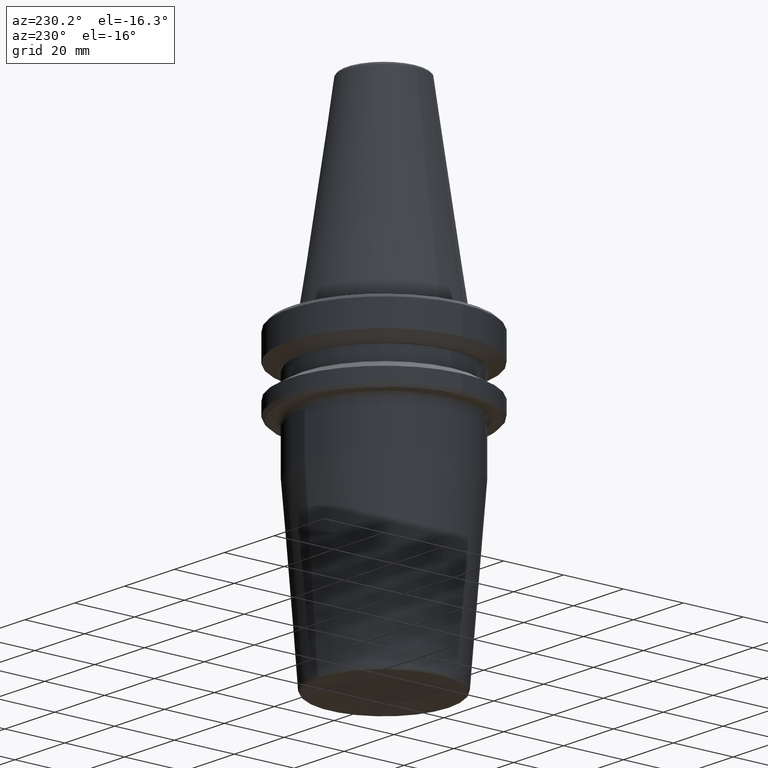
[diagram: clean part render]
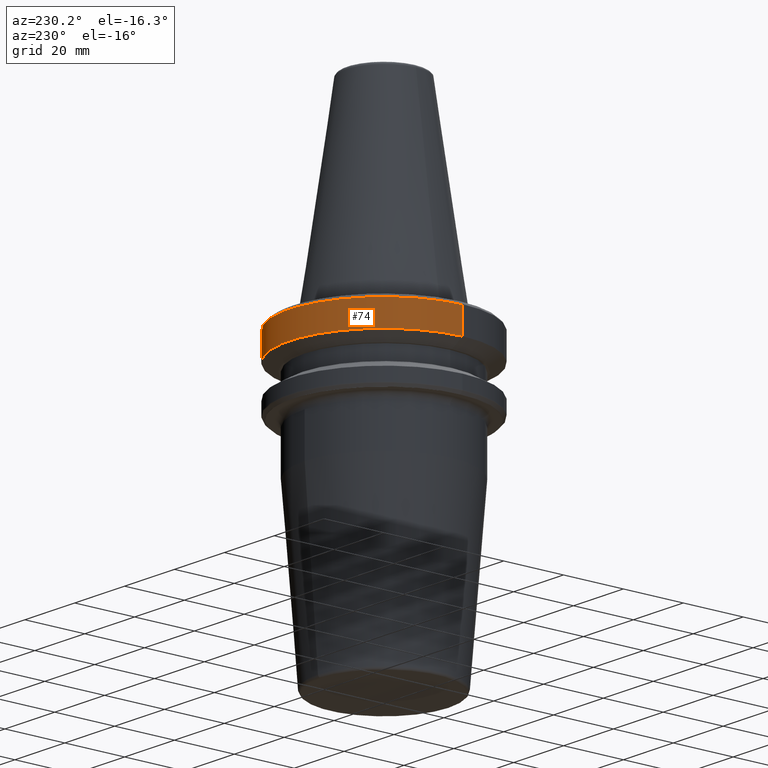
[diagram: same view with one face highlighted and labeled with its STEP entity id]
A machine part, auxiliary view. The second image highlights one B-rep face of the part: STEP entity #74.
In plain terms, the highlighted cylindrical surface (partial cylindrical patch) has radius 31.5 mm, axis along (-0, -0, 1).
Its self-contained STEP definition (entity closure, byte-faithful):
#7 = DIRECTION ( 'NONE',  ( -0.0000000000000000000, -0.0000000000000000000, 1.000000000000000000 ) ) ;
#20 = CARTESIAN_POINT ( 'NONE',  ( 0.0000000000000000000, 0.0000000000000000000, 69.75694866325665100 ) ) ;
#61 = ORIENTED_EDGE ( 'NONE', *, *, #96, .T. ) ;
#63 = DIRECTION ( 'NONE',  ( -0.0000000000000000000, -0.0000000000000000000, 1.000000000000000000 ) ) ;
#72 = CIRCLE ( 'NONE', #402, 31.49999999999999300 ) ;
#74 = ADVANCED_FACE ( 'NONE', ( #443 ), #417, .T. ) ;
#83 = LINE ( 'NONE', #519, #302 ) ;
#96 = EDGE_CURVE ( 'NONE', #374, #651, #914, .T. ) ;
#159 = DIRECTION ( 'NONE',  ( 1.000000000000000000, 0.0000000000000000000, 0.0000000000000000000 ) ) ;
#211 = ORIENTED_EDGE ( 'NONE', *, *, #925, .F. ) ;
#220 = VECTOR ( 'NONE', #63, 1000.000000000000000 ) ;
#240 = DIRECTION ( 'NONE',  ( -0.0000000000000000000, -0.0000000000000000000, 1.000000000000000000 ) ) ;
#302 = VECTOR ( 'NONE', #240, 1000.000000000000000 ) ;
#374 = VERTEX_POINT ( 'NONE', #931 ) ;
#402 = AXIS2_PLACEMENT_3D ( 'NONE', #568, #7, #675 ) ;
#417 = CYLINDRICAL_SURFACE ( 'NONE', #506, 31.50000000000000000 ) ;
#443 = FACE_OUTER_BOUND ( 'NONE', #1186, .T. ) ;
#444 = AXIS2_PLACEMENT_3D ( 'NONE', #1202, #1092, #1236 ) ;
#506 = AXIS2_PLACEMENT_3D ( 'NONE', #20, #834, #159 ) ;
#519 = CARTESIAN_POINT ( 'NONE',  ( 31.50000000000000000, 0.0000000000000000000, 69.75694866325665100 ) ) ;
#568 = CARTESIAN_POINT ( 'NONE',  ( 0.0000000000000000000, 0.0000000000000000000, -3.165685424949243700 ) ) ;
#586 = VERTEX_POINT ( 'NONE', #865 ) ;
#629 = CARTESIAN_POINT ( 'NONE',  ( -31.50000000000000000, 3.857637417314162700E-015, 69.75694866325665100 ) ) ;
#651 = VERTEX_POINT ( 'NONE', #677 ) ;
#652 = ORIENTED_EDGE ( 'NONE', *, *, #975, .T. ) ;
#675 = DIRECTION ( 'NONE',  ( 1.000000000000000000, 0.0000000000000000000, 0.0000000000000000000 ) ) ;
#677 = CARTESIAN_POINT ( 'NONE',  ( -31.50000000000000000, 3.857637417314162700E-015, -11.59985799368323700 ) ) ;
#834 = DIRECTION ( 'NONE',  ( -0.0000000000000000000, -0.0000000000000000000, 1.000000000000000000 ) ) ;
#865 = CARTESIAN_POINT ( 'NONE',  ( 31.49999999999999300, 0.0000000000000000000, -3.165685424949243700 ) ) ;
#907 = ORIENTED_EDGE ( 'NONE', *, *, #1187, .F. ) ;
#908 = VERTEX_POINT ( 'NONE', #922 ) ;
#914 = CIRCLE ( 'NONE', #444, 31.50000000000000000 ) ;
#922 = CARTESIAN_POINT ( 'NONE',  ( -31.49999999999999300, 3.857637417314161900E-015, -3.165685424949243700 ) ) ;
#925 = EDGE_CURVE ( 'NONE', #374, #586, #83, .T. ) ;
#931 = CARTESIAN_POINT ( 'NONE',  ( 31.50000000000000000, 0.0000000000000000000, -11.59985799368323700 ) ) ;
#975 = EDGE_CURVE ( 'NONE', #651, #908, #1003, .T. ) ;
#1003 = LINE ( 'NONE', #629, #220 ) ;
#1092 = DIRECTION ( 'NONE',  ( -0.0000000000000000000, -0.0000000000000000000, 1.000000000000000000 ) ) ;
#1186 = EDGE_LOOP ( 'NONE', ( #61, #652, #907, #211 ) ) ;
#1187 = EDGE_CURVE ( 'NONE', #586, #908, #72, .T. ) ;
#1202 = CARTESIAN_POINT ( 'NONE',  ( 0.0000000000000000000, 0.0000000000000000000, -11.59985799368323700 ) ) ;
#1236 = DIRECTION ( 'NONE',  ( 1.000000000000000000, 0.0000000000000000000, 0.0000000000000000000 ) ) ;